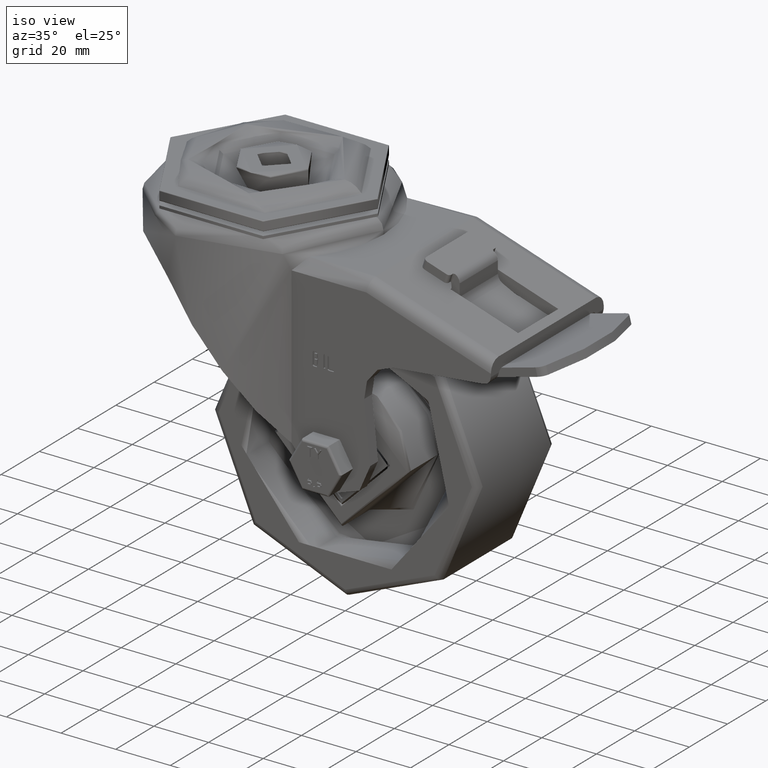
[diagram: clean part render]
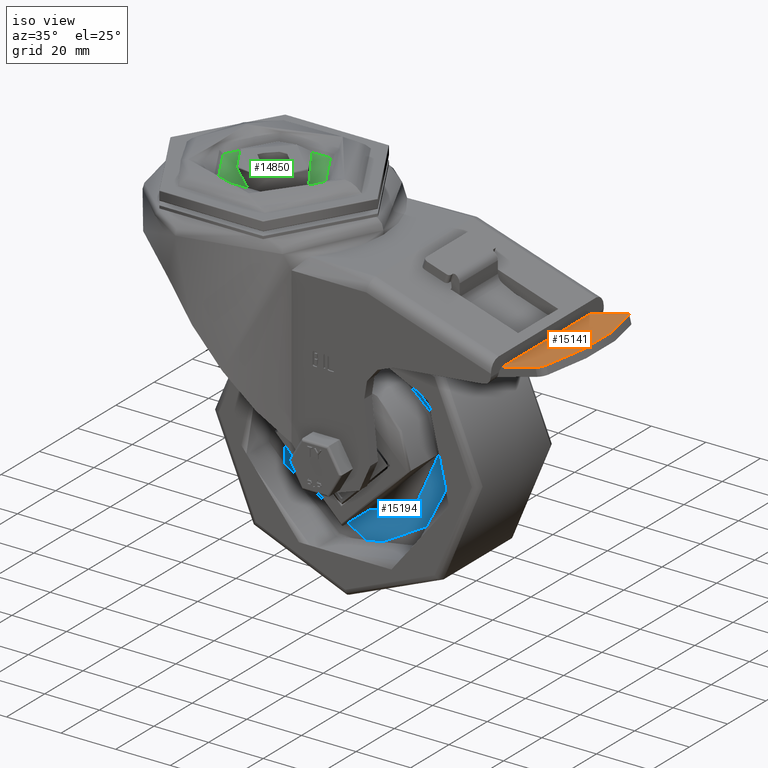
[diagram: same view with three faces highlighted in distinct colors, each labeled with its STEP entity id]
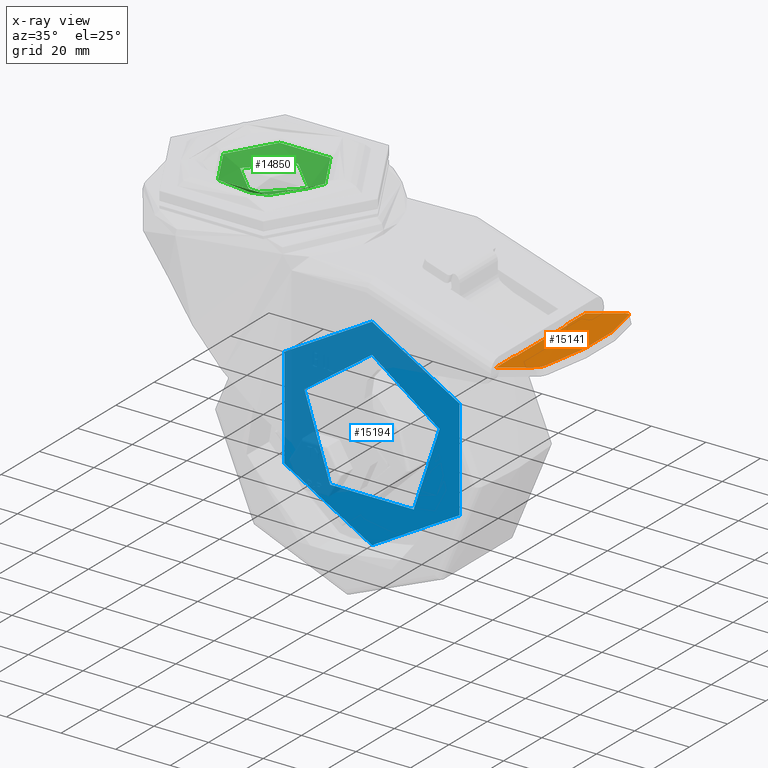
[diagram: x-ray of the same camera — body ghosted, the three highlighted faces saturated]
A machine part, iso view with three faces highlighted in distinct colors.
The next image is the same camera in x-ray (body ghosted, the three faces saturated) — at least one of them is partly hidden behind the body in this view.
Their STEP definitions:

[orange] entity #15141 — the highlighted planar face has unit normal (-0.263, 0, 0.9648).
#1450=PLANE('',#16611);
#2026=FACE_OUTER_BOUND('',#2945,.T.);
#2945=EDGE_LOOP('',(#11726,#11727,#11728,#11729,#11730,#11731,#11732,#11733,
#11734,#11735));
#4087=LINE('',#24402,#5146);
#4089=LINE('',#24410,#5148);
#4105=LINE('',#24472,#5164);
#4108=LINE('',#24477,#5167);
#4109=LINE('',#24478,#5168);
#4110=LINE('',#24479,#5169);
#4111=LINE('',#24481,#5170);
#5146=VECTOR('',#19107,1000.);
#5148=VECTOR('',#19113,1000.);
#5164=VECTOR('',#19169,1000.);
#5167=VECTOR('',#19174,1000.);
#5168=VECTOR('',#19175,1000.);
#5169=VECTOR('',#19176,1000.);
#5170=VECTOR('',#19179,1000.);
#6056=CIRCLE('',#16573,3.);
#6059=CIRCLE('',#16577,3.);
#6081=CIRCLE('',#16612,52.9545454545454);
#6929=VERTEX_POINT('',#24353);
#6930=VERTEX_POINT('',#24354);
#6935=VERTEX_POINT('',#24365);
#6936=VERTEX_POINT('',#24367);
#6950=VERTEX_POINT('',#24399);
#6951=VERTEX_POINT('',#24401);
#6954=VERTEX_POINT('',#24407);
#6955=VERTEX_POINT('',#24409);
#6981=VERTEX_POINT('',#24471);
#6982=VERTEX_POINT('',#24476);
#8670=EDGE_CURVE('',#6929,#6930,#6056,.T.);
#8676=EDGE_CURVE('',#6935,#6936,#6059,.T.);
#8691=EDGE_CURVE('',#6950,#6951,#4087,.T.);
#8695=EDGE_CURVE('',#6954,#6955,#4089,.T.);
#8724=EDGE_CURVE('',#6954,#6981,#4105,.T.);
#8727=EDGE_CURVE('',#6981,#6982,#4108,.T.);
#8728=EDGE_CURVE('',#6982,#6951,#4109,.T.);
#8729=EDGE_CURVE('',#6950,#6936,#4110,.T.);
#8730=EDGE_CURVE('',#6935,#6930,#6081,.F.);
#8731=EDGE_CURVE('',#6929,#6955,#4111,.T.);
#11726=ORIENTED_EDGE('',*,*,#8724,.T.);
#11727=ORIENTED_EDGE('',*,*,#8727,.T.);
#11728=ORIENTED_EDGE('',*,*,#8728,.T.);
#11729=ORIENTED_EDGE('',*,*,#8691,.F.);
#11730=ORIENTED_EDGE('',*,*,#8729,.T.);
#11731=ORIENTED_EDGE('',*,*,#8676,.F.);
#11732=ORIENTED_EDGE('',*,*,#8730,.T.);
#11733=ORIENTED_EDGE('',*,*,#8670,.F.);
#11734=ORIENTED_EDGE('',*,*,#8731,.T.);
#11735=ORIENTED_EDGE('',*,*,#8695,.F.);
#15141=ADVANCED_FACE('',(#2026),#1450,.T.);
#16573=AXIS2_PLACEMENT_3D('',#24355,#19065,#19066);
#16577=AXIS2_PLACEMENT_3D('',#24368,#19076,#19077);
#16611=AXIS2_PLACEMENT_3D('',#24475,#19172,#19173);
#16612=AXIS2_PLACEMENT_3D('',#24480,#19177,#19178);
#19065=DIRECTION('center_axis',(0.263026783862061,0.,-0.964788531736971));
#19066=DIRECTION('ref_axis',(0.523848604530258,0.83975385275211,0.142814937312902));
#19076=DIRECTION('center_axis',(0.263026783862061,0.,-0.964788531736971));
#19077=DIRECTION('ref_axis',(0.523848604530259,-0.83975385275211,0.142814937312902));
#19107=DIRECTION('',(0.,1.,0.));
#19113=DIRECTION('',(0.,1.,0.));
#19169=DIRECTION('',(0.964788531736971,0.,0.263026783862061));
#19172=DIRECTION('center_axis',(-0.263026783862061,0.,0.964788531736971));
#19173=DIRECTION('ref_axis',(-0.964788531736971,-8.36820657678659E-17,-0.263026783862061));
#19174=DIRECTION('',(0.,-1.,0.));
#19175=DIRECTION('',(-0.964788531736971,0.,-0.263026783862061));
#19176=DIRECTION('',(0.964788531736971,8.36820657678658E-17,0.263026783862061));
#19177=DIRECTION('center_axis',(0.263026783862061,-1.93318665469242E-17,
-0.964788531736971));
#19178=DIRECTION('ref_axis',(0.864583027582316,-0.443776824034335,0.235708122190551));
#19179=DIRECTION('',(-0.964788531736971,-8.36820657678658E-17,-0.263026783862061));
#24353=CARTESIAN_POINT('',(112.07137861966,23.5,-23.6615511726452));
#24354=CARTESIAN_POINT('',(114.710801923139,21.7311191992721,-22.9419748096108));
#24355=CARTESIAN_POINT('Origin',(112.07137861966,20.5,-23.6615511726452));
#24365=CARTESIAN_POINT('',(114.710801923139,-21.7311191992721,-22.9419748096108));
#24367=CARTESIAN_POINT('',(112.07137861966,-23.5,-23.6615511726452));
#24368=CARTESIAN_POINT('Origin',(112.07137861966,-20.5,-23.6615511726452));
#24399=CARTESIAN_POINT('',(97.5131933473818,-23.5,-27.6304962057516));
#24401=CARTESIAN_POINT('',(97.5131933473818,-13.5,-27.6304962057516));
#24402=CARTESIAN_POINT('',(97.5131933473818,-9.58113845340997E-16,-27.6304962057516));
#24407=CARTESIAN_POINT('',(97.5131933473818,13.5,-27.6304962057516));
#24409=CARTESIAN_POINT('',(97.5131933473818,23.5,-27.6304962057516));
#24410=CARTESIAN_POINT('',(97.5131933473818,-9.58113845340997E-16,-27.6304962057516));
#24471=CARTESIAN_POINT('',(98.,13.5,-27.4977798808899));
#24472=CARTESIAN_POINT('',(60.8326609447323,13.5,-37.6305761723399));
#24475=CARTESIAN_POINT('Origin',(107.907398876896,-1.04886595269359E-15,
-24.7967618056263));
#24476=CARTESIAN_POINT('',(98.,-13.5,-27.4977798808899));
#24477=CARTESIAN_POINT('',(98.,-5.24432976346794E-16,-27.4977798808899));
#24478=CARTESIAN_POINT('',(60.8326609447323,-13.5,-37.6305761723399));
#24479=CARTESIAN_POINT('',(100.,-23.5,-26.9525271644454));
#24480=CARTESIAN_POINT('Origin',(68.1209814905242,0.,-35.6435878843841));
#24481=CARTESIAN_POINT('',(100.,23.5,-26.9525271644454));

[blue] entity #15194 — the highlighted planar face has unit normal (0, -1, 0).
#1150=FACE_BOUND('',#3004,.T.);
#1478=PLANE('',#16737);
#2079=FACE_OUTER_BOUND('',#3003,.T.);
#3003=EDGE_LOOP('',(#12017));
#3004=EDGE_LOOP('',(#12018));
#6101=CIRCLE('',#16670,37.);
#6102=CIRCLE('',#16672,26.);
#6998=VERTEX_POINT('',#24616);
#6999=VERTEX_POINT('',#24620);
#8787=EDGE_CURVE('',#6998,#6998,#6101,.T.);
#8788=EDGE_CURVE('',#6999,#6999,#6102,.T.);
#12017=ORIENTED_EDGE('',*,*,#8787,.F.);
#12018=ORIENTED_EDGE('',*,*,#8788,.T.);
#15194=ADVANCED_FACE('',(#2079,#1150),#1478,.T.);
#16670=AXIS2_PLACEMENT_3D('',#24618,#19330,#19331);
#16672=AXIS2_PLACEMENT_3D('',#24621,#19334,#19335);
#16737=AXIS2_PLACEMENT_3D('',#24724,#19470,#19471);
#19330=DIRECTION('center_axis',(-3.49148336110938E-15,1.,0.));
#19331=DIRECTION('ref_axis',(-1.,-3.49148336110938E-15,0.));
#19334=DIRECTION('center_axis',(-3.49148336110938E-15,1.,0.));
#19335=DIRECTION('ref_axis',(-1.,-3.49148336110938E-15,0.));
#19470=DIRECTION('center_axis',(3.8068876294688E-15,-1.,0.));
#19471=DIRECTION('ref_axis',(1.,3.8068876294688E-15,0.));
#24616=CARTESIAN_POINT('',(2.54800933235014E-14,-5.99999999999997,37.));
#24618=CARTESIAN_POINT('Origin',(2.09489001666562E-14,-5.99999999999997,
0.));
#24620=CARTESIAN_POINT('',(2.41329818444393E-14,-5.99999999999997,26.));
#24621=CARTESIAN_POINT('Origin',(2.09489001666562E-14,-5.99999999999997,
0.));
#24724=CARTESIAN_POINT('Origin',(-31.5,-6.00000000000008,0.));

[green] entity #14850 — the highlighted conical surface has half-angle 63.435 deg.
#1686=CONICAL_SURFACE('',#16051,16.,1.10714871779409);
#1735=FACE_OUTER_BOUND('',#2627,.T.);
#2627=EDGE_LOOP('',(#10267,#10268,#10269,#10270,#10271));
#3709=LINE('',#21707,#4768);
#4768=VECTOR('',#17657,16.);
#5842=CIRCLE('',#16052,12.5);
#5843=CIRCLE('',#16053,18.6416327316993);
#5844=CIRCLE('',#16054,18.6416327316993);
#6524=VERTEX_POINT('',#21704);
#6525=VERTEX_POINT('',#21706);
#6526=VERTEX_POINT('',#21708);
#8014=EDGE_CURVE('',#6524,#6524,#5842,.T.);
#8015=EDGE_CURVE('',#6524,#6525,#3709,.T.);
#8016=EDGE_CURVE('',#6526,#6525,#5843,.T.);
#8017=EDGE_CURVE('',#6525,#6526,#5844,.T.);
#10267=ORIENTED_EDGE('',*,*,#8014,.F.);
#10268=ORIENTED_EDGE('',*,*,#8015,.T.);
#10269=ORIENTED_EDGE('',*,*,#8016,.F.);
#10270=ORIENTED_EDGE('',*,*,#8017,.F.);
#10271=ORIENTED_EDGE('',*,*,#8015,.F.);
#14850=ADVANCED_FACE('',(#1735),#1686,.F.);
#16051=AXIS2_PLACEMENT_3D('',#21703,#17653,#17654);
#16052=AXIS2_PLACEMENT_3D('',#21705,#17655,#17656);
#16053=AXIS2_PLACEMENT_3D('',#21709,#17658,#17659);
#16054=AXIS2_PLACEMENT_3D('',#21710,#17660,#17661);
#17653=DIRECTION('center_axis',(0.,0.,1.));
#17654=DIRECTION('ref_axis',(-1.,0.,0.));
#17655=DIRECTION('center_axis',(0.,0.,1.));
#17656=DIRECTION('ref_axis',(-1.,0.,0.));
#17657=DIRECTION('',(0.894427190999916,1.09535739652841E-16,0.447213595499958));
#17658=DIRECTION('center_axis',(0.,0.,-1.));
#17659=DIRECTION('ref_axis',(1.,0.,0.));
#17660=DIRECTION('center_axis',(0.,0.,-1.));
#17661=DIRECTION('ref_axis',(1.,0.,0.));
#21703=CARTESIAN_POINT('Origin',(0.,0.,1.75));
#21704=CARTESIAN_POINT('',(12.5,-1.53080849893419E-15,2.60208521396521E-15));
#21705=CARTESIAN_POINT('Origin',(0.,0.,2.60208521396521E-15));
#21706=CARTESIAN_POINT('',(18.6416327316993,-2.2829415855756E-15,3.07081636584964));
#21707=CARTESIAN_POINT('',(16.,1.95943487863577E-15,1.75));
#21708=CARTESIAN_POINT('',(-18.6416327316993,-2.28294158557561E-15,3.07081636584964));
#21709=CARTESIAN_POINT('Origin',(0.,2.2829415855756E-15,3.07081636584964));
#21710=CARTESIAN_POINT('Origin',(0.,2.2829415855756E-15,3.07081636584964));